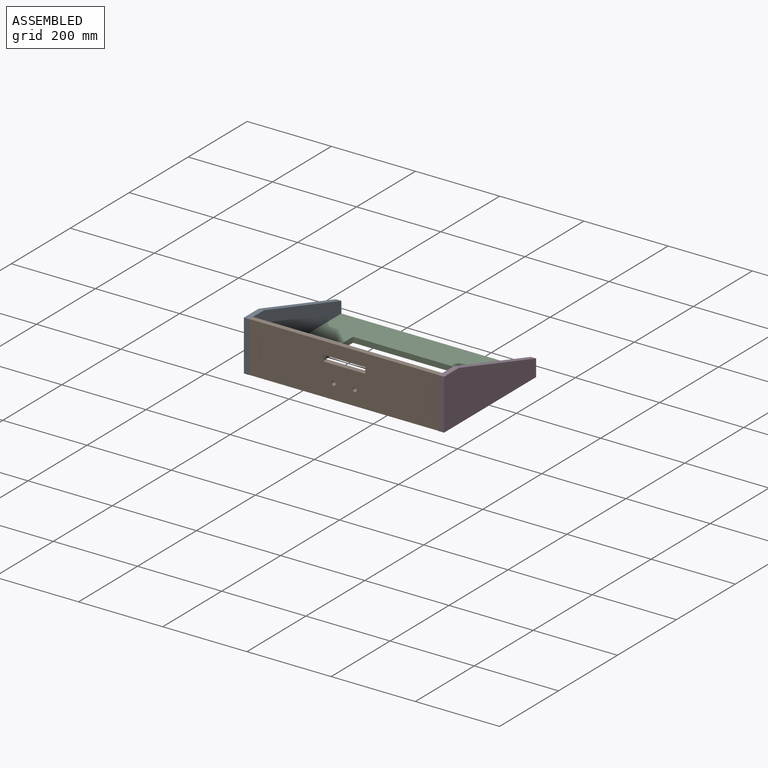
[diagram: assembled view]
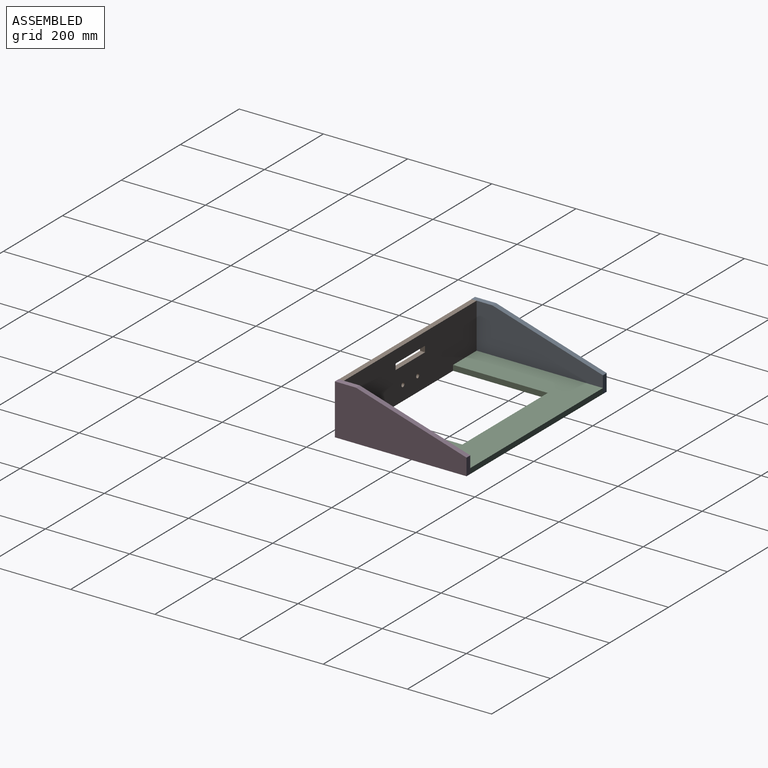
[diagram: assembled view, second angle]
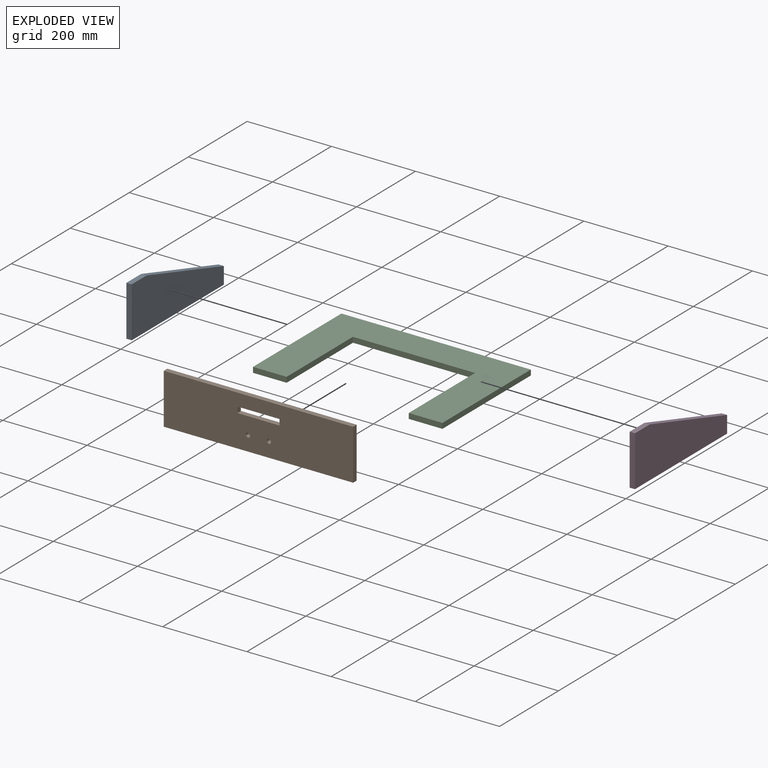
[diagram: exploded view]
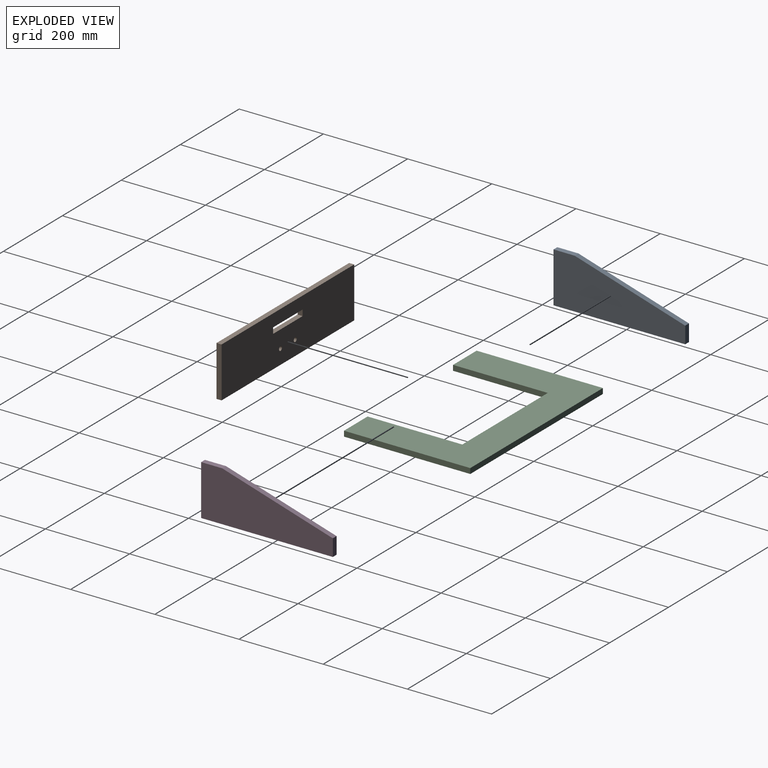
[diagram: exploded view, second angle]
ASSEMBLY  parts=4 mates=3
PART A: 7 faces, bbox 12.7x312.7x120 mm
  f0: plane 50x12.7mm, normal (0,0,1), area 635mm2, adj f1,f4,f5,f6
  f1: plane 120x12.7mm, normal (0,-1,0), area 1524mm2, adj f0,f2,f5,f6
  f2: plane 312.7x12.7mm, normal (0,0,-1), area 3971.3mm2, adj f1,f3,f5,f6
  f3: plane 40x12.7mm, normal (0,1,0), area 508mm2, adj f2,f4,f5,f6
  f4: plane 262.7x80mm, normal (0,0.29,0.96), area 3487.6mm2, adj f0,f3,f5,f6
  f5: plane 312.7x120mm, normal (-1,0,0), area 27016mm2, adj f0,f1,f2,f3,f4
  f6: plane 312.7x120mm, normal (1,0,0), area 27016mm2, adj f0,f1,f2,f3,f4
PART B: 12 faces, bbox 450x12x120 mm
  f0: plane 450x12mm, normal (0,0,-1), area 5400mm2, adj f1,f3,f4,f5
  f1: plane 120x12mm, normal (1,0,0), area 1440mm2, adj f0,f2,f4,f5
  f2: plane 450x12mm, normal (0,0,1), area 5400mm2, adj f1,f3,f4,f5
  f3: plane 120x12mm, normal (-1,0,0), area 1440mm2, adj f0,f2,f4,f5
  f4: plane 450x120mm, normal (0,-1,0), area 52442.9mm2, adj f0,f1,f2,f3,f6,f7,f8,f9
  f5: plane 450x120mm, normal (0,1,0), area 52442.9mm2, adj f0,f1,f2,f3,f6,f7,f8,f9
  f6: cylinder r=5mm len=12mm, axis (0,-1,0), area 377mm2, adj f4,f5
  f7: cylinder r=5mm len=12mm, axis (0,-1,0), area 377mm2, adj f4,f5
  f8: plane 14x12mm, normal (-1,0,0), area 168mm2, adj f4,f5,f9,f10
  f9: plane 100x12mm, normal (0,0,1), area 1200mm2, adj f4,f5,f8,f11
  f10: plane 100x12mm, normal (0,0,-1), area 1200mm2, adj f4,f5,f8,f11
  f11: plane 14x12mm, normal (1,0,0), area 168mm2, adj f4,f5,f9,f10
PART C: 10 faces, bbox 450x300x12.7 mm
  f0: plane 80x12.7mm, normal (0,-1,0), area 1016mm2, adj f1,f7,f8,f9
  f1: plane 300x12.7mm, normal (-1,0,0), area 3810mm2, adj f0,f2,f8,f9
  f2: plane 450x12.7mm, normal (0,1,0), area 5715mm2, adj f1,f3,f8,f9
  f3: plane 300x12.7mm, normal (1,0,0), area 3810mm2, adj f2,f4,f8,f9
  f4: plane 80x12.7mm, normal (0,-1,0), area 1016mm2, adj f3,f5,f8,f9
  f5: plane 225x12.7mm, normal (-1,0,0), area 2857.5mm2, adj f4,f6,f8,f9
  f6: plane 290x12.7mm, normal (0,-1,0), area 3683mm2, adj f5,f7,f8,f9
  f7: plane 225x12.7mm, normal (1,0,0), area 2857.5mm2, adj f0,f6,f8,f9
  f8: plane 450x300mm, normal (0,0,1), area 69750mm2, adj f0,f1,f2,f3,f4,f5,f6,f7
  f9: plane 450x300mm, normal (0,0,-1), area 69750mm2, adj f0,f1,f2,f3,f4,f5,f6,f7
PART D: 7 faces, bbox 12.7x312.7x120 mm
  f0: plane 50x12.7mm, normal (0,0,1), area 635mm2, adj f1,f4,f5,f6
  f1: plane 120x12.7mm, normal (0,-1,0), area 1524mm2, adj f0,f2,f5,f6
  f2: plane 312.7x12.7mm, normal (0,0,-1), area 3971.3mm2, adj f1,f3,f5,f6
  f3: plane 40x12.7mm, normal (0,1,0), area 508mm2, adj f2,f4,f5,f6
  f4: plane 262.7x80mm, normal (0,0.29,0.96), area 3487.6mm2, adj f0,f3,f5,f6
  f5: plane 312.7x120mm, normal (1,0,0), area 27016mm2, adj f0,f1,f2,f3,f4
  f6: plane 312.7x120mm, normal (-1,0,0), area 27016mm2, adj f0,f1,f2,f3,f4
PLACE A t=(309.03,-157.65,30.3)mm
PLACE B t=(309.03,-156.95,30.3)mm
PLACE C t=(309.03,-156.95,30.3)mm fixed
PLACE D t=(309.03,-157.65,30.3)mm
MATE fastened C.f3 <-> D.f6  axis (1,0,0) through (534.03,143.05,-29.7)mm
MATE fastened B.f5 <-> C.f4  axis (0,1,0) through (534.03,-156.95,-29.7)mm
MATE fastened C.f1 <-> A.f6  axis (1,0,0) through (84.03,143.05,-29.7)mm
